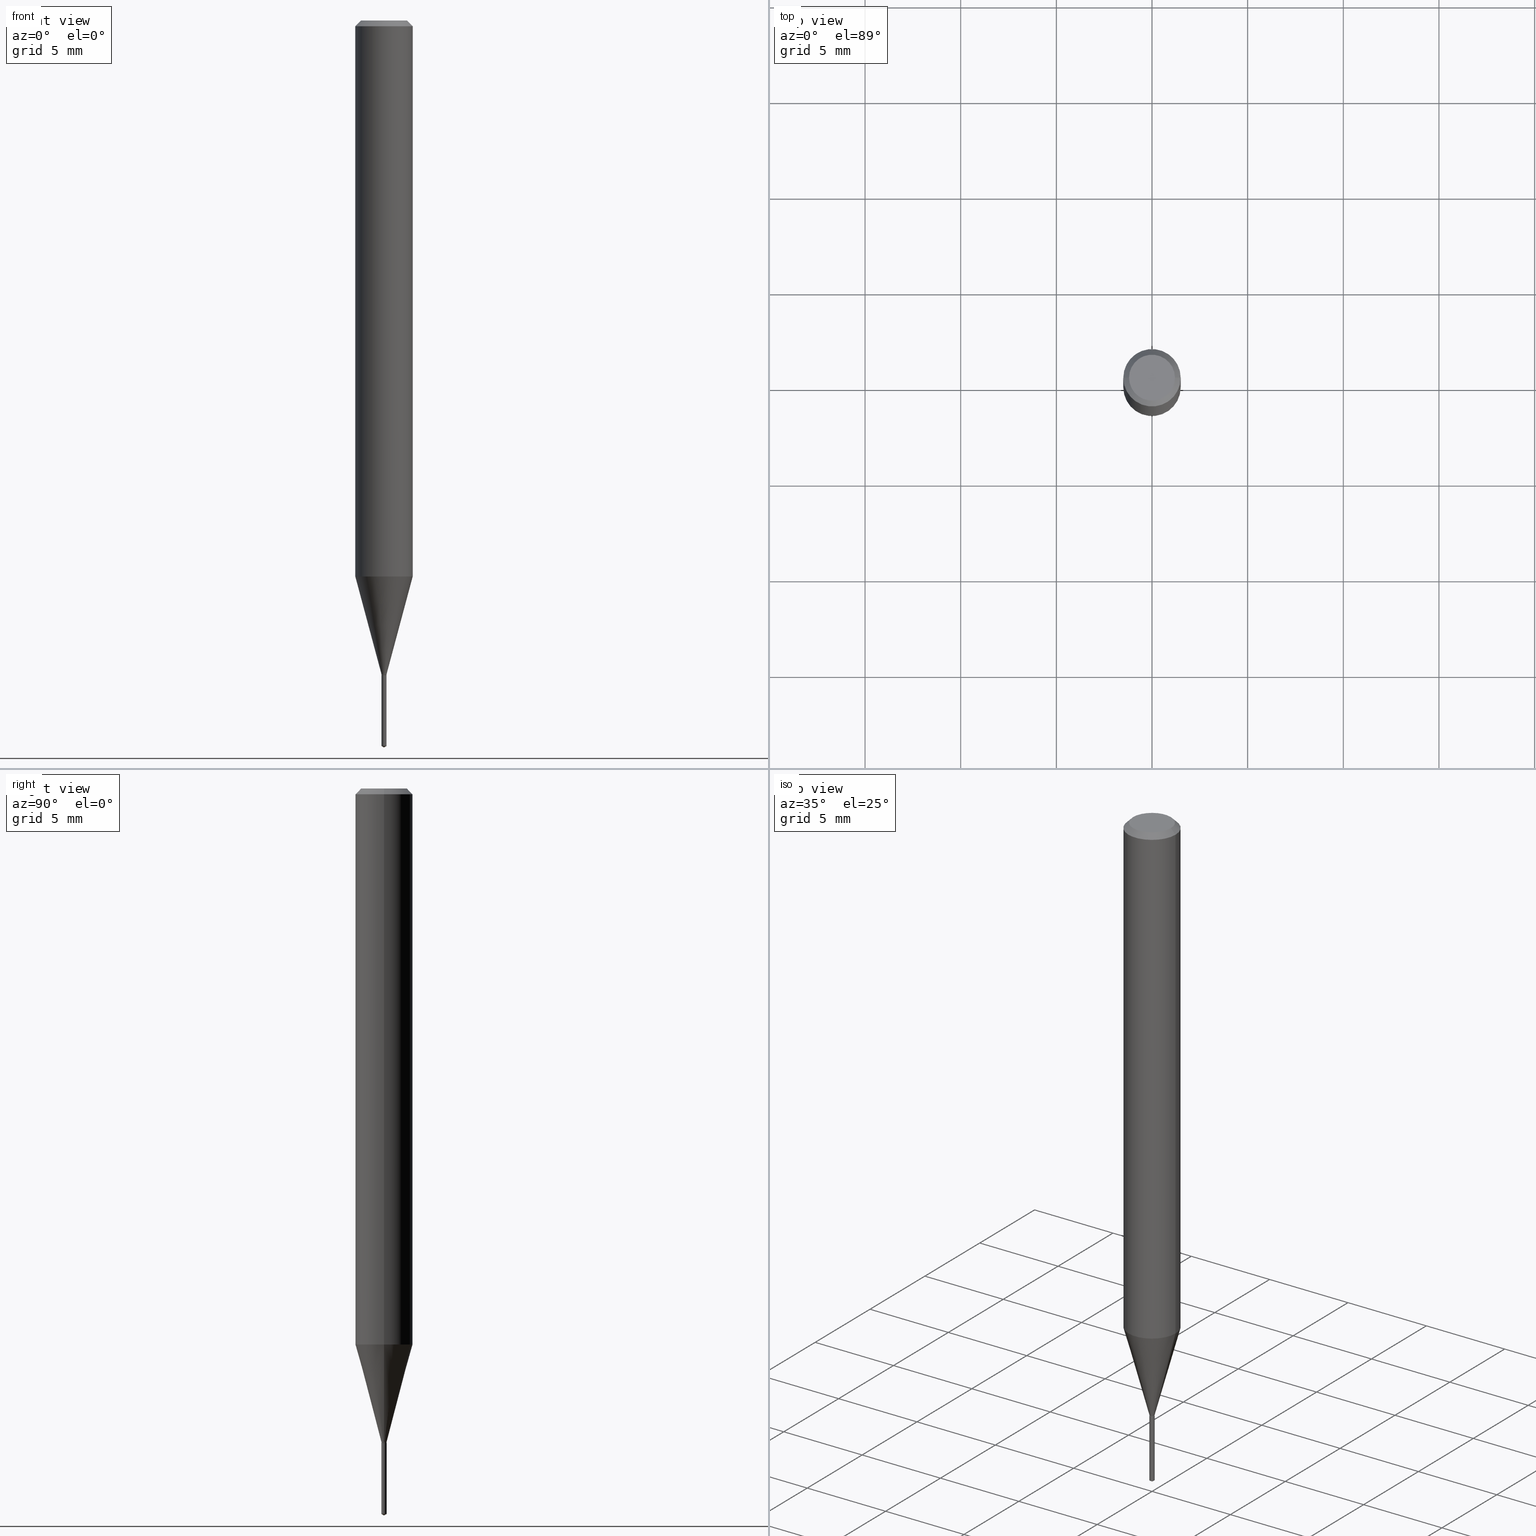
[diagram: canonical four-view strip — front | top / right | iso, engineering-drawing reading convention]
A machine part, canonical four-view strip (front | top / right | iso — engineering-drawing reading convention). The complete STEP part file that produces these views, byte-faithful:
ISO-10303-21;
HEADER;
FILE_DESCRIPTION (( 'STEP AP203' ),
    '1' );
FILE_NAME ('08068.STEP',
    '2024-04-24T10:28:14',
    ( '' ),
    ( '' ),
    'SwSTEP 2.0',
    'SolidWorks 2023',
    '' );
FILE_SCHEMA (( 'CONFIG_CONTROL_DESIGN' ));
ENDSEC;

DATA;
#1 = EDGE_CURVE ( 'NONE', #347, #334, #438, .T. ) ;
#2 = PERSON_AND_ORGANIZATION ( #227, #206 ) ;
#3 = ORIENTED_EDGE ( 'NONE', *, *, #230, .F. ) ;
#4 = APPROVAL_ROLE ( '' ) ;
#5 = EDGE_LOOP ( 'NONE', ( #462, #176, #136, #151 ) ) ;
#6 = VECTOR ( 'NONE', #90, 39.37007874015748143 ) ;
#7 = AXIS2_PLACEMENT_3D ( 'NONE', #470, #17, #395 ) ;
#8 =( NAMED_UNIT ( * ) PLANE_ANGLE_UNIT ( ) SI_UNIT ( $, .RADIAN. ) );
#9 = VERTEX_POINT ( 'NONE', #21 ) ;
#10 = ORIENTED_EDGE ( 'NONE', *, *, #32, .F. ) ;
#11 = DIRECTION ( 'NONE',  ( 2.445468806185136597E-29, -3.491481338843145583E-15, -1.000000000000000000 ) ) ;
#12 = LENGTH_MEASURE_WITH_UNIT ( LENGTH_MEASURE( 0.02539999999999999897 ), #355 );
#13 = VERTEX_POINT ( 'NONE', #474 ) ;
#14 = DIRECTION ( 'NONE',  ( -2.445442211314109806E-29, 3.491519424212141825E-15, 1.000000000000000000 ) ) ;
#15 =( NAMED_UNIT ( * ) SI_UNIT ( $, .STERADIAN. ) SOLID_ANGLE_UNIT ( ) );
#16 = VECTOR ( 'NONE', #31, 39.37007874015748854 ) ;
#17 = DIRECTION ( 'NONE',  ( -2.445468806185136597E-29, 3.491481338843145583E-15, 1.000000000000000000 ) ) ;
#18 = AXIS2_PLACEMENT_3D ( 'NONE', #311, #50, #321 ) ;
#19 = APPROVAL ( #263, 'UNSPECIFIED' ) ;
#20 = DIRECTION ( 'NONE',  ( 1.000000000000000000, -6.982962677686350330E-15, 0.000000000000000000 ) ) ;
#21 = CARTESIAN_POINT ( 'NONE',  ( 3.765876499532181332E-17, 0.005299999999994787180, -1.492915438719153887 ) ) ;
#22 = CYLINDRICAL_SURFACE ( 'NONE', #403, 0.005300000000000000891 ) ;
#23 = AXIS2_PLACEMENT_3D ( 'NONE', #120, #430, #391 ) ;
#24 = AXIS2_PLACEMENT_3D ( 'NONE', #59, #483, #170 ) ;
#25 = EDGE_CURVE ( 'NONE', #155, #328, #242, .T. ) ;
#26 = CARTESIAN_POINT ( 'NONE',  ( 3.650874241760179392E-29, -5.212491971044763500E-15, -1.492915438719153887 ) ) ;
#27 = CIRCLE ( 'NONE', #273, 0.005300000000000000891 ) ;
#28 = ORIENTED_EDGE ( 'NONE', *, *, #325, .F. ) ;
#29 = CONICAL_SURFACE ( 'NONE', #460, 65.52281426576722367, 1.029744258676646318 ) ;
#30 = EDGE_CURVE ( 'NONE', #153, #43, #200, .T. ) ;
#31 = DIRECTION ( 'NONE',  ( -5.985567269335913669E-15, -0.8571673007021062274, 0.5150380749100640365 ) ) ;
#32 = EDGE_CURVE ( 'NONE', #13, #312, #237, .T. ) ;
#33 = DIRECTION ( 'NONE',  ( 6.090539988449750037E-15, 0.8571673007021097801, 0.5150380749100581523 ) ) ;
#34 = PERSON_AND_ORGANIZATION_ROLE ( 'creator' ) ;
#35 = FACE_OUTER_BOUND ( 'NONE', #260, .T. ) ;
#36 = ORIENTED_EDGE ( 'NONE', *, *, #486, .T. ) ;
#37 = AXIS2_PLACEMENT_3D ( 'NONE', #281, #278, #127 ) ;
#38 = PERSON_AND_ORGANIZATION_ROLE ( 'creator' ) ;
#39 = ORIENTED_EDGE ( 'NONE', *, *, #32, .T. ) ;
#40 = ORIENTED_EDGE ( 'NONE', *, *, #451, .F. ) ;
#41 = PERSON_AND_ORGANIZATION ( #227, #206 ) ;
#42 = CARTESIAN_POINT ( 'NONE',  ( 0.004800000000000000447, -4.734797843605188939E-15, -1.346500000000000030 ) ) ;
#43 = VERTEX_POINT ( 'NONE', #94 ) ;
#44 = ORIENTED_EDGE ( 'NONE', *, *, #393, .T. ) ;
#45 = PERSON_AND_ORGANIZATION ( #227, #206 ) ;
#46 = CLOSED_SHELL ( 'NONE', ( #217, #233, #364, #425, #105 ) ) ;
#47 = AXIS2_PLACEMENT_3D ( 'NONE', #288, #137, #134 ) ;
#48 = CC_DESIGN_PERSON_AND_ORGANIZATION_ASSIGNMENT ( #41, #38, ( #440 ) ) ;
#49 = CARTESIAN_POINT ( 'NONE',  ( 0.05905000000000006771, -4.123439461173745257E-16, 2.879382386107503723E-30 ) ) ;
#50 = DIRECTION ( 'NONE',  ( 2.445468806185136597E-29, -3.491481338843145583E-15, -1.000000000000000000 ) ) ;
#51 = VERTEX_POINT ( 'NONE', #286 ) ;
#52 = DIRECTION ( 'NONE',  ( 2.445442211314109526E-29, -3.491519424212141825E-15, -1.000000000000000000 ) ) ;
#53 = LINE ( 'NONE', #129, #168 ) ;
#54 = CARTESIAN_POINT ( 'NONE',  ( 0.000000000000000000, 0.000000000000000000, 0.000000000000000000 ) ) ;
#55 = CARTESIAN_POINT ( 'NONE',  ( 8.265746106709734507E-48, -1.180129479067563789E-33, -3.380025165646692144E-19 ) ) ;
#56 = CARTESIAN_POINT ( 'NONE',  ( 0.05904999999999999832, -4.463468013801466955E-16, -0.01181000000000007044 ) ) ;
#57 = DIRECTION ( 'NONE',  ( 1.000000000000000000, -6.982962677686266711E-15, 4.876185090822587894E-29 ) ) ;
#58 = DIRECTION ( 'NONE',  ( 1.000000000000000000, 0.000000000000000000, 0.000000000000000000 ) ) ;
#59 = CARTESIAN_POINT ( 'NONE',  ( 3.292823747528286589E-29, -4.701279622752295282E-15, -1.346500000000000030 ) ) ;
#60 = AXIS2_PLACEMENT_3D ( 'NONE', #475, #249, #58 ) ;
#61 = CARTESIAN_POINT ( 'NONE',  ( 0.000000000000000000, 0.000000000000000000, 0.000000000000000000 ) ) ;
#62 = CARTESIAN_POINT ( 'NONE',  ( 3.765876499531823880E-17, 0.005299999999995298923, -1.346500000000000030 ) ) ;
#63 = ORIENTED_EDGE ( 'NONE', *, *, #191, .T. ) ;
#64 = ADVANCED_FACE ( 'NONE', ( #441 ), #240, .T. ) ;
#65 = CLOSED_SHELL ( 'NONE', ( #179, #253, #64, #354, #98, #114, #406, #478, #360, #117, #149, #437 ) ) ;
#66 = CONICAL_SURFACE ( 'NONE', #18, 0.05904999999999999832, 0.7853981633974452814 ) ;
#67 = DIRECTION ( 'NONE',  ( -2.445468806185136597E-29, 3.491481338843145583E-15, 1.000000000000000000 ) ) ;
#68 = APPROVAL_ROLE ( '' ) ;
#69 = ORIENTED_EDGE ( 'NONE', *, *, #416, .F. ) ;
#70 = EDGE_CURVE ( 'NONE', #194, #125, #82, .T. ) ;
#71 = VERTEX_POINT ( 'NONE', #359 ) ;
#72 = EDGE_LOOP ( 'NONE', ( #115, #350, #69, #385 ) ) ;
#73 = CARTESIAN_POINT ( 'NONE',  ( 0.04724000000000000421, -3.852183633974369345E-16, -3.380025165621689721E-19 ) ) ;
#74 = EDGE_LOOP ( 'NONE', ( #235, #296, #188, #374 ) ) ;
#75 = APPROVAL_PERSON_ORGANIZATION ( #45, #446, #190 ) ;
#76 = APPROVAL_DATE_TIME ( #335, #19 ) ;
#77 = EDGE_LOOP ( 'NONE', ( #415, #387, #229, #267 ) ) ;
#78 = FACE_OUTER_BOUND ( 'NONE', #72, .T. ) ;
#79 = ORIENTED_EDGE ( 'NONE', *, *, #209, .F. ) ;
#80 = ORIENTED_EDGE ( 'NONE', *, *, #99, .T. ) ;
#81 = DIRECTION ( 'NONE',  ( -0.7071067811865453523, 2.468850131082234184E-15, -0.7071067811865496822 ) ) ;
#82 = CIRCLE ( 'NONE', #481, 0.04724000000000000421 ) ;
#83 = VECTOR ( 'NONE', #96, 39.37007874015748143 ) ;
#84 = EDGE_LOOP ( 'NONE', ( #303, #389, #394 ) ) ;
#85 = CARTESIAN_POINT ( 'NONE',  ( 3.765876499532184414E-17, 0.005299999999995298923, -1.346500000000000030 ) ) ;
#86 = ADVANCED_BREP_SHAPE_REPRESENTATION ( '08068', ( #285, #280, #60 ), #97 ) ;
#87 = DIRECTION ( 'NONE',  ( 1.000000000000000000, -6.982962677686265133E-15, 4.876176775795935793E-29 ) ) ;
#88 = FACE_OUTER_BOUND ( 'NONE', #262, .T. ) ;
#89 = ORIENTED_EDGE ( 'NONE', *, *, #126, .T. ) ;
#90 = DIRECTION ( 'NONE',  ( -2.445468806185136877E-29, 3.491481338843145188E-15, 1.000000000000000000 ) ) ;
#91 = CC_DESIGN_PERSON_AND_ORGANIZATION_ASSIGNMENT ( #216, #34, ( #274 ) ) ;
#92 = CONICAL_SURFACE ( 'NONE', #345, 65.52281426576722367, 1.029744258676646318 ) ;
#93 = CARTESIAN_POINT ( 'NONE',  ( -0.005300000000000000891, 3.765876499528531618E-17, -2.607035597835100114E-31 ) ) ;
#94 = CARTESIAN_POINT ( 'NONE',  ( 0.05905000000000013710, -4.407653964652056153E-15, -1.144302269093172786 ) ) ;
#95 = CARTESIAN_POINT ( 'NONE',  ( 3.292823747528286589E-29, -4.701279622752295282E-15, -1.346500000000000030 ) ) ;
#96 = DIRECTION ( 'NONE',  ( -2.445442211314110086E-29, 3.491519424212141825E-15, 1.000000000000000000 ) ) ;
#97 =( GEOMETRIC_REPRESENTATION_CONTEXT ( 3 ) GLOBAL_UNCERTAINTY_ASSIGNED_CONTEXT ( ( #199 ) ) GLOBAL_UNIT_ASSIGNED_CONTEXT ( ( #396, #8, #15 ) ) REPRESENTATION_CONTEXT ( 'NONE', 'WORKASPACE' ) );
#98 = ADVANCED_FACE ( 'NONE', ( #431 ), #476, .T. ) ;
#99 = EDGE_CURVE ( 'NONE', #312, #308, #397, .T. ) ;
#100 = CARTESIAN_POINT ( 'NONE',  ( 0.005300000000000000891, -3.700970219173721302E-17, 2.584373691171846264E-31 ) ) ;
#101 = DIRECTION ( 'NONE',  ( -2.445442211314109806E-29, 3.491519424212141825E-15, 1.000000000000000000 ) ) ;
#102 = CIRCLE ( 'NONE', #299, 0.05904999999999999832 ) ;
#103 = AXIS2_PLACEMENT_3D ( 'NONE', #55, #124, #246 ) ;
#104 = ORIENTED_EDGE ( 'NONE', *, *, #70, .T. ) ;
#105 = ADVANCED_FACE ( 'NONE', ( #123 ), #162, .F. ) ;
#106 = DIRECTION ( 'NONE',  ( -2.445468806185136597E-29, 3.491481338843145583E-15, 1.000000000000000000 ) ) ;
#107 = ORIENTED_EDGE ( 'NONE', *, *, #466, .F. ) ;
#108 = DESIGN_CONTEXT ( 'detailed design', #340, 'design' ) ;
#109 = ORIENTED_EDGE ( 'NONE', *, *, #165, .F. ) ;
#110 = DIRECTION ( 'NONE',  ( 0.2588190451025213501, 1.565188264969621968E-15, 0.9659258262890682012 ) ) ;
#111 = CONICAL_SURFACE ( 'NONE', #172, 0.004800000000000000447, 0.7853981633975491983 ) ;
#112 = CIRCLE ( 'NONE', #7, 0.004800000000000000447 ) ;
#113 = APPROVAL_DATE_TIME ( #305, #446 ) ;
#114 = ADVANCED_FACE ( 'NONE', ( #365 ), #471, .T. ) ;
#115 = ORIENTED_EDGE ( 'NONE', *, *, #457, .T. ) ;
#116 = CARTESIAN_POINT ( 'NONE',  ( 0.005300000000000000891, -4.732702954801883924E-15, -1.344899999999999984 ) ) ;
#117 = ADVANCED_FACE ( 'NONE', ( #411 ), #484, .F. ) ;
#118 = DIRECTION ( 'NONE',  ( -2.445468806185136877E-29, 3.491481338843145188E-15, 1.000000000000000000 ) ) ;
#119 = CARTESIAN_POINT ( 'NONE',  ( 3.292823747528286589E-29, -4.701279622752295282E-15, -1.346500000000000030 ) ) ;
#120 = CARTESIAN_POINT ( 'NONE',  ( 3.288910997438389961E-29, -4.695693252610146470E-15, -1.344899999999999984 ) ) ;
#121 = CIRCLE ( 'NONE', #201, 0.05905000000000013710 ) ;
#122 = APPROVAL_PERSON_ORGANIZATION ( #2, #19, #68 ) ;
#123 = FACE_OUTER_BOUND ( 'NONE', #467, .T. ) ;
#124 = DIRECTION ( 'NONE',  ( -2.445468806185136597E-29, 3.491481338843145583E-15, 1.000000000000000000 ) ) ;
#125 = VERTEX_POINT ( 'NONE', #449 ) ;
#126 = EDGE_CURVE ( 'NONE', #155, #9, #215, .T. ) ;
#127 = DIRECTION ( 'NONE',  ( 1.000000000000000000, -6.982962677686350330E-15, 0.000000000000000000 ) ) ;
#128 = CARTESIAN_POINT ( 'NONE',  ( -3.700970219170070355E-17, -0.005300000000005212000, -1.492915438719153887 ) ) ;
#129 = CARTESIAN_POINT ( 'NONE',  ( -0.005300000000000000891, -4.658034487614861364E-15, -1.344899999999999984 ) ) ;
#130 = AXIS2_PLACEMENT_3D ( 'NONE', #224, #379, #187 ) ;
#131 = CONICAL_SURFACE ( 'NONE', #331, 0.005300000000000000891, 0.2617993877991500740 ) ;
#132 = DIRECTION ( 'NONE',  ( -2.445468806185136597E-29, 3.491481338843145583E-15, 1.000000000000000000 ) ) ;
#133 = DIRECTION ( 'NONE',  ( -2.445468806185136597E-29, 3.491481338843145583E-15, 1.000000000000000000 ) ) ;
#134 = DIRECTION ( 'NONE',  ( 1.000000000000000000, -6.982962677686250933E-15, 0.000000000000000000 ) ) ;
#135 = DIRECTION ( 'NONE',  ( -6.982962677686265133E-15, -1.000000000000000000, 0.000000000000000000 ) ) ;
#136 = ORIENTED_EDGE ( 'NONE', *, *, #165, .T. ) ;
#137 = DIRECTION ( 'NONE',  ( -2.445468806185136597E-29, 3.491481338843145583E-15, 1.000000000000000000 ) ) ;
#138 = PRODUCT_DEFINITION_SHAPE ( 'NONE', 'NONE',  #440 ) ;
#139 = CARTESIAN_POINT ( 'NONE',  ( 4.132873053354867254E-48, -5.900647395337818946E-34, -1.690012582823346072E-19 ) ) ;
#140 = PERSON_AND_ORGANIZATION_ROLE ( 'design_owner' ) ;
#141 = CIRCLE ( 'NONE', #428, 0.05904999999999999832 ) ;
#142 = EDGE_LOOP ( 'NONE', ( #315, #104 ) ) ;
#143 = AXIS2_PLACEMENT_3D ( 'NONE', #61, #208, #363 ) ;
#144 = SECURITY_CLASSIFICATION_LEVEL ( 'unclassified' ) ;
#145 = DIRECTION ( 'NONE',  ( 1.000000000000000000, -6.982962677686265922E-15, 4.876176775795935793E-29 ) ) ;
#146 = CALENDAR_DATE ( 2024, 24, 4 ) ;
#147 = EDGE_LOOP ( 'NONE', ( #421, #89, #381 ) ) ;
#148 = CARTESIAN_POINT ( 'NONE',  ( 3.658626092347039619E-29, -5.223662210563784453E-15, -1.496099999999999985 ) ) ;
#149 = ADVANCED_FACE ( 'NONE', ( #254 ), #289, .F. ) ;
#150 = DIRECTION ( 'NONE',  ( -2.445468806185136597E-29, 3.491481338843145583E-15, 1.000000000000000000 ) ) ;
#151 = ORIENTED_EDGE ( 'NONE', *, *, #30, .F. ) ;
#152 = VECTOR ( 'NONE', #320, 39.37007874015748143 ) ;
#153 = VERTEX_POINT ( 'NONE', #232 ) ;
#154 = DIRECTION ( 'NONE',  ( -2.445468806185136597E-29, 3.491481338843145583E-15, 1.000000000000000000 ) ) ;
#155 = VERTEX_POINT ( 'NONE', #148 ) ;
#156 = ORIENTED_EDGE ( 'NONE', *, *, #393, .F. ) ;
#157 = CARTESIAN_POINT ( 'NONE',  ( 0.005300000000000000891, -4.736543584274611232E-15, -1.346000000000000085 ) ) ;
#158 = COORDINATED_UNIVERSAL_TIME_OFFSET ( 5, 0, .BEHIND. ) ;
#159 = DIRECTION ( 'NONE',  ( -1.000000000000000000, 6.982962677686266711E-15, 0.000000000000000000 ) ) ;
#160 = CC_DESIGN_PERSON_AND_ORGANIZATION_ASSIGNMENT ( #338, #140, ( #349 ) ) ;
#161 = SECURITY_CLASSIFICATION ( '', '', #144 ) ;
#162 = PLANE ( 'NONE',  #362 ) ;
#163 = CARTESIAN_POINT ( 'NONE',  ( -0.004800000000000000447, -4.667173571435810285E-15, -1.346500000000000030 ) ) ;
#164 = CARTESIAN_POINT ( 'NONE',  ( 2.888098660104663766E-31, -4.123439461173779647E-17, -0.01181000000000007044 ) ) ;
#165 = EDGE_CURVE ( 'NONE', #308, #43, #261, .T. ) ;
#166 = CC_DESIGN_DATE_AND_TIME_ASSIGNMENT ( #234, #459, ( #161 ) ) ;
#167 = DIRECTION ( 'NONE',  ( -6.982962677686265133E-15, -1.000000000000000000, 0.000000000000000000 ) ) ;
#168 = VECTOR ( 'NONE', #198, 39.37007874015747433 ) ;
#169 = DIRECTION ( 'NONE',  ( -2.445442211314109806E-29, 3.491519424212141825E-15, 1.000000000000000000 ) ) ;
#170 = DIRECTION ( 'NONE',  ( 1.000000000000000000, -6.982962677686250933E-15, 0.000000000000000000 ) ) ;
#171 = APPROVAL ( #219, 'UNSPECIFIED' ) ;
#172 = AXIS2_PLACEMENT_3D ( 'NONE', #487, #106, #268 ) ;
#173 = DIRECTION ( 'NONE',  ( -6.982962677686265133E-15, -1.000000000000000000, 0.000000000000000000 ) ) ;
#174 = AXIS2_PLACEMENT_3D ( 'NONE', #314, #400, #239 ) ;
#175 = CARTESIAN_POINT ( 'NONE',  ( 8.265746106709734507E-48, -1.180129479067563789E-33, -3.380025165646692144E-19 ) ) ;
#176 = ORIENTED_EDGE ( 'NONE', *, *, #451, .T. ) ;
#177 = DIRECTION ( 'NONE',  ( -1.000000000000000000, 6.982962677686265922E-15, -4.876176775795935793E-29 ) ) ;
#178 = APPROVAL_DATE_TIME ( #221, #171 ) ;
#179 = ADVANCED_FACE ( 'NONE', ( #78 ), #111, .T. ) ;
#180 = CALENDAR_DATE ( 2024, 24, 4 ) ;
#181 = CARTESIAN_POINT ( 'NONE',  ( 3.292823747528286589E-29, -4.701279622752295282E-15, -1.346500000000000030 ) ) ;
#182 = AXIS2_PLACEMENT_3D ( 'NONE', #119, #448, #245 ) ;
#183 = EDGE_LOOP ( 'NONE', ( #156, #39, #80, #40 ) ) ;
#184 = VECTOR ( 'NONE', #279, 39.37007874015748143 ) ;
#185 = PERSON_AND_ORGANIZATION ( #227, #206 ) ;
#186 = ORIENTED_EDGE ( 'NONE', *, *, #1, .T. ) ;
#187 = DIRECTION ( 'NONE',  ( -6.982962677686265133E-15, -1.000000000000000000, 0.000000000000000000 ) ) ;
#188 = ORIENTED_EDGE ( 'NONE', *, *, #222, .F. ) ;
#189 = CIRCLE ( 'NONE', #23, 0.005300000000000000891 ) ;
#190 = APPROVAL_ROLE ( '' ) ;
#191 = EDGE_CURVE ( 'NONE', #328, #334, #420, .T. ) ;
#192 = ORIENTED_EDGE ( 'NONE', *, *, #265, .T. ) ;
#193 = LINE ( 'NONE', #163, #353 ) ;
#194 = VERTEX_POINT ( 'NONE', #73 ) ;
#195 = CARTESIAN_POINT ( 'NONE',  ( -9.261859051160046497E-28, 1.322377837254069045E-13, 37.87397874015748300 ) ) ;
#196 = PRODUCT_RELATED_PRODUCT_CATEGORY ( 'detail', '', ( #349 ) ) ;
#197 = DIRECTION ( 'NONE',  ( 6.982962677686265922E-15, 1.000000000000000000, -3.491519424212141825E-15 ) ) ;
#198 = DIRECTION ( 'NONE',  ( -0.2588190451025213501, 5.211531920934551042E-15, 0.9659258262890682012 ) ) ;
#199 = UNCERTAINTY_MEASURE_WITH_UNIT (LENGTH_MEASURE( 1.000000000000000082E-05 ), #396, 'distance_accuracy_value', 'NONE');
#200 = CIRCLE ( 'NONE', #330, 0.05905000000000013710 ) ;
#201 = AXIS2_PLACEMENT_3D ( 'NONE', #357, #318, #434 ) ;
#202 = CARTESIAN_POINT ( 'NONE',  ( 0.000000000000000000, 0.000000000000000000, 0.000000000000000000 ) ) ;
#203 = DIRECTION ( 'NONE',  ( -2.445468806185136597E-29, 3.491481338843145583E-15, 1.000000000000000000 ) ) ;
#204 = EDGE_CURVE ( 'NONE', #368, #312, #386, .T. ) ;
#205 = FACE_OUTER_BOUND ( 'NONE', #5, .T. ) ;
#206 = ORGANIZATION ( 'UNSPECIFIED', 'UNSPECIFIED', '' ) ;
#207 = CARTESIAN_POINT ( 'NONE',  ( 3.288910997438389961E-29, -4.695693252610146470E-15, -1.344899999999999984 ) ) ;
#208 = DIRECTION ( 'NONE',  ( -2.445468806185136597E-29, 3.491481338843145583E-15, 1.000000000000000000 ) ) ;
#209 = EDGE_CURVE ( 'NONE', #334, #347, #27, .T. ) ;
#210 = CARTESIAN_POINT ( 'NONE',  ( 3.292823747528286589E-29, -4.701279622752295282E-15, -1.346500000000000030 ) ) ;
#211 = COORDINATED_UNIVERSAL_TIME_OFFSET ( 5, 0, .BEHIND. ) ;
#212 = VECTOR ( 'NONE', #110, 39.37007874015747433 ) ;
#213 = LOCAL_TIME ( 6, 28, 14.00000000000000000, #211 ) ;
#214 = VERTEX_POINT ( 'NONE', #342 ) ;
#215 = LINE ( 'NONE', #369, #266 ) ;
#216 = PERSON_AND_ORGANIZATION ( #227, #206 ) ;
#217 = ADVANCED_FACE ( 'NONE', ( #35 ), #450, .T. ) ;
#218 = ORIENTED_EDGE ( 'NONE', *, *, #294, .F. ) ;
#219 = APPROVAL_STATUS ( 'not_yet_approved' ) ;
#220 = ORIENTED_EDGE ( 'NONE', *, *, #416, .T. ) ;
#221 = DATE_AND_TIME ( #301, #405 ) ;
#222 = EDGE_CURVE ( 'NONE', #71, #423, #102, .T. ) ;
#223 = EDGE_LOOP ( 'NONE', ( #28, #409, #269, #10 ) ) ;
#224 = CARTESIAN_POINT ( 'NONE',  ( 3.292823747528286589E-29, -4.701279622752295282E-15, -1.346500000000000030 ) ) ;
#225 = EDGE_LOOP ( 'NONE', ( #458, #304, #332, #418 ) ) ;
#226 = CC_DESIGN_SECURITY_CLASSIFICATION ( #161, ( #274 ) ) ;
#227 = PERSON ( 'UNSPECIFIED', 'UNSPECIFIED', 'UNSPECIFIED', ('UNSPECIFIED'), ('UNSPECIFIED'), ('UNSPECIFIED') ) ;
#228 = DATE_AND_TIME ( #146, #213 ) ;
#229 = ORIENTED_EDGE ( 'NONE', *, *, #222, .T. ) ;
#230 = EDGE_CURVE ( 'NONE', #153, #423, #298, .T. ) ;
#231 = SHAPE_DEFINITION_REPRESENTATION ( #138, #86 ) ;
#232 = CARTESIAN_POINT ( 'NONE',  ( -0.05905000000000013710, -3.575734533068340951E-15, -1.144302269093172786 ) ) ;
#233 = ADVANCED_FACE ( 'NONE', ( #313 ), #92, .T. ) ;
#234 = DATE_AND_TIME ( #309, #402 ) ;
#235 = ORIENTED_EDGE ( 'NONE', *, *, #294, .T. ) ;
#236 = FACE_OUTER_BOUND ( 'NONE', #77, .T. ) ;
#237 = CIRCLE ( 'NONE', #37, 0.005300000000000000891 ) ;
#238 = EDGE_CURVE ( 'NONE', #125, #423, #351, .T. ) ;
#239 = DIRECTION ( 'NONE',  ( 1.000000000000000000, -6.982962677686350330E-15, 0.000000000000000000 ) ) ;
#240 = CYLINDRICAL_SURFACE ( 'NONE', #401, 0.05905000000000006771 ) ;
#241 = LINE ( 'NONE', #49, #468 ) ;
#242 = LINE ( 'NONE', #284, #16 ) ;
#243 = CARTESIAN_POINT ( 'NONE',  ( 2.888098660104663766E-31, -4.123439461173779647E-17, -0.01181000000000007044 ) ) ;
#244 = AXIS2_PLACEMENT_3D ( 'NONE', #248, #291, #173 ) ;
#245 = DIRECTION ( 'NONE',  ( -6.982962677686265133E-15, -1.000000000000000000, 0.000000000000000000 ) ) ;
#246 = DIRECTION ( 'NONE',  ( 1.000000000000000000, -6.982962677686266711E-15, 4.876185090822587894E-29 ) ) ;
#247 = DIRECTION ( 'NONE',  ( -2.445468806185136597E-29, 3.491481338843145583E-15, 1.000000000000000000 ) ) ;
#248 = CARTESIAN_POINT ( 'NONE',  ( 3.650874241760179392E-29, -5.212491971044763500E-15, -1.492915438719153887 ) ) ;
#249 = DIRECTION ( 'NONE',  ( 0.000000000000000000, 0.000000000000000000, 1.000000000000000000 ) ) ;
#250 = CIRCLE ( 'NONE', #103, 0.04724000000000000421 ) ;
#251 = PERSON_AND_ORGANIZATION ( #227, #206 ) ;
#252 = ORIENTED_EDGE ( 'NONE', *, *, #466, .T. ) ;
#253 = ADVANCED_FACE ( 'NONE', ( #236 ), #366, .T. ) ;
#254 = FACE_OUTER_BOUND ( 'NONE', #264, .T. ) ;
#255 = AXIS2_PLACEMENT_3D ( 'NONE', #480, #433, #145 ) ;
#256 = CIRCLE ( 'NONE', #300, 0.005300000000000000891 ) ;
#257 = CARTESIAN_POINT ( 'NONE',  ( 2.888098660104663766E-31, -4.123439461173779647E-17, -0.01181000000000007044 ) ) ;
#258 = DIRECTION ( 'NONE',  ( -2.445442211314110086E-29, 3.491519424212141825E-15, 1.000000000000000000 ) ) ;
#259 = COORDINATED_UNIVERSAL_TIME_OFFSET ( 5, 0, .BEHIND. ) ;
#260 = EDGE_LOOP ( 'NONE', ( #380, #252, #79, #293 ) ) ;
#261 = LINE ( 'NONE', #116, #212 ) ;
#262 = EDGE_LOOP ( 'NONE', ( #370, #382, #218, #109 ) ) ;
#263 = APPROVAL_STATUS ( 'not_yet_approved' ) ;
#264 = EDGE_LOOP ( 'NONE', ( #422, #339 ) ) ;
#265 = EDGE_CURVE ( 'NONE', #43, #71, #241, .T. ) ;
#266 = VECTOR ( 'NONE', #33, 39.37007874015748143 ) ;
#267 = ORIENTED_EDGE ( 'NONE', *, *, #238, .F. ) ;
#268 = DIRECTION ( 'NONE',  ( 1.000000000000000000, -6.982962677686250933E-15, 0.000000000000000000 ) ) ;
#269 = ORIENTED_EDGE ( 'NONE', *, *, #204, .T. ) ;
#270 = ORIENTED_EDGE ( 'NONE', *, *, #1, .F. ) ;
#271 = CARTESIAN_POINT ( 'NONE',  ( 0.005300000000000000891, -4.732702954801883924E-15, -1.344899999999999984 ) ) ;
#272 = DIRECTION ( 'NONE',  ( 1.000000000000000000, -6.982962677686266711E-15, 0.000000000000000000 ) ) ;
#273 = AXIS2_PLACEMENT_3D ( 'NONE', #181, #101, #373 ) ;
#274 = PRODUCT_DEFINITION_FORMATION_WITH_SPECIFIED_SOURCE ( 'ANY', '', #349, .NOT_KNOWN. ) ;
#275 = DIRECTION ( 'NONE',  ( 1.000000000000000000, -6.982962677686266711E-15, 4.876176775795936353E-29 ) ) ;
#276 = DIRECTION ( 'NONE',  ( -0.7071067811866187380, 7.493145998870611329E-15, 0.7071067811864760744 ) ) ;
#277 = EDGE_CURVE ( 'NONE', #308, #51, #189, .T. ) ;
#278 = DIRECTION ( 'NONE',  ( -2.445468806185136597E-29, 3.491481338843145583E-15, 1.000000000000000000 ) ) ;
#279 = DIRECTION ( 'NONE',  ( 0.7071067811865453523, -7.319954787623248157E-15, -0.7071067811865496822 ) ) ;
#280 = MANIFOLD_SOLID_BREP ( 'Body-Move/Copy2[2]', #65 ) ;
#281 = CARTESIAN_POINT ( 'NONE',  ( 3.291601013125194348E-29, -4.699533882082873778E-15, -1.346000000000000085 ) ) ;
#282 = DIRECTION ( 'NONE',  ( -2.445442211314109806E-29, 3.491519424212141825E-15, 1.000000000000000000 ) ) ;
#283 = CONICAL_SURFACE ( 'NONE', #174, 0.005300000000000000891, 0.2617993877991500740 ) ;
#284 = CARTESIAN_POINT ( 'NONE',  ( 3.658626092347039619E-29, -5.223662210563784453E-15, -1.496099999999999985 ) ) ;
#285 = MANIFOLD_SOLID_BREP ( 'Body-Move/Copy2[1]', #46 ) ;
#286 = CARTESIAN_POINT ( 'NONE',  ( -0.005300000000000000891, -4.659954802351225412E-15, -1.344899999999999984 ) ) ;
#287 = EDGE_CURVE ( 'NONE', #423, #71, #141, .T. ) ;
#288 = CARTESIAN_POINT ( 'NONE',  ( 3.292823747528286589E-29, -4.701279622752295282E-15, -1.346500000000000030 ) ) ;
#289 = PLANE ( 'NONE',  #255 ) ;
#290 = CIRCLE ( 'NONE', #47, 0.004800000000000000447 ) ;
#291 = DIRECTION ( 'NONE',  ( -2.445442211314109806E-29, 3.491519424212141825E-15, 1.000000000000000000 ) ) ;
#292 = APPLICATION_CONTEXT ( 'configuration controlled 3d designs of mechanical parts and assemblies' ) ;
#293 = ORIENTED_EDGE ( 'NONE', *, *, #191, .F. ) ;
#294 = EDGE_CURVE ( 'NONE', #43, #153, #121, .T. ) ;
#295 = CYLINDRICAL_SURFACE ( 'NONE', #143, 0.05905000000000006771 ) ;
#296 = ORIENTED_EDGE ( 'NONE', *, *, #230, .T. ) ;
#297 = DIRECTION ( 'NONE',  ( 2.438088387897960049E-29, -3.491481338843145188E-15, -1.000000000000000000 ) ) ;
#298 = LINE ( 'NONE', #414, #6 ) ;
#299 = AXIS2_PLACEMENT_3D ( 'NONE', #257, #150, #306 ) ;
#300 = AXIS2_PLACEMENT_3D ( 'NONE', #207, #326, #477 ) ;
#301 = CALENDAR_DATE ( 2024, 24, 4 ) ;
#302 = CARTESIAN_POINT ( 'NONE',  ( -3.700970219170428424E-17, -0.005300000000004701992, -1.346500000000000030 ) ) ;
#303 = ORIENTED_EDGE ( 'NONE', *, *, #126, .F. ) ;
#304 = ORIENTED_EDGE ( 'NONE', *, *, #372, .F. ) ;
#305 = DATE_AND_TIME ( #343, #367 ) ;
#306 = DIRECTION ( 'NONE',  ( 1.000000000000000000, -6.982962677686266711E-15, 0.000000000000000000 ) ) ;
#307 = CONICAL_SURFACE ( 'NONE', #24, 0.004800000000000000447, 0.7853981633975491983 ) ;
#308 = VERTEX_POINT ( 'NONE', #271 ) ;
#309 = CALENDAR_DATE ( 2024, 24, 4 ) ;
#310 = ORIENTED_EDGE ( 'NONE', *, *, #30, .T. ) ;
#311 = CARTESIAN_POINT ( 'NONE',  ( 2.888098660104663766E-31, -4.123439461173779647E-17, -0.01181000000000007044 ) ) ;
#312 = VERTEX_POINT ( 'NONE', #157 ) ;
#313 = FACE_OUTER_BOUND ( 'NONE', #147, .T. ) ;
#314 = CARTESIAN_POINT ( 'NONE',  ( 3.288910997438389961E-29, -4.695693252610146470E-15, -1.344899999999999984 ) ) ;
#315 = ORIENTED_EDGE ( 'NONE', *, *, #372, .T. ) ;
#316 = CC_DESIGN_APPROVAL ( #171, ( #440 ) ) ;
#317 = CARTESIAN_POINT ( 'NONE',  ( 2.798355503914224078E-29, -3.995310018534680444E-15, -1.144302269093172786 ) ) ;
#318 = DIRECTION ( 'NONE',  ( -2.445468806185136597E-29, 3.491481338843145583E-15, 1.000000000000000000 ) ) ;
#319 = EDGE_CURVE ( 'NONE', #214, #368, #112, .T. ) ;
#320 = DIRECTION ( 'NONE',  ( -2.445468806185136877E-29, 3.491481338843145188E-15, 1.000000000000000000 ) ) ;
#321 = DIRECTION ( 'NONE',  ( -1.000000000000000000, 6.982962677686266711E-15, 0.000000000000000000 ) ) ;
#322 = APPLICATION_PROTOCOL_DEFINITION ( 'international standard', 'config_control_design', 1994, #292 ) ;
#323 = DIRECTION ( 'NONE',  ( 1.000000000000000000, -6.982962677686264344E-15, 0.000000000000000000 ) ) ;
#324 = FACE_OUTER_BOUND ( 'NONE', #223, .T. ) ;
#325 = EDGE_CURVE ( 'NONE', #214, #13, #193, .T. ) ;
#326 = DIRECTION ( 'NONE',  ( -2.445468806185136597E-29, 3.491481338843145583E-15, 1.000000000000000000 ) ) ;
#327 = CARTESIAN_POINT ( 'NONE',  ( 3.291601013125194348E-29, -4.699533882082873778E-15, -1.346000000000000085 ) ) ;
#328 = VERTEX_POINT ( 'NONE', #128 ) ;
#329 = AXIS2_PLACEMENT_3D ( 'NONE', #202, #356, #87 ) ;
#330 = AXIS2_PLACEMENT_3D ( 'NONE', #317, #132, #323 ) ;
#331 = AXIS2_PLACEMENT_3D ( 'NONE', #358, #154, #20 ) ;
#332 = ORIENTED_EDGE ( 'NONE', *, *, #238, .T. ) ;
#333 = EDGE_CURVE ( 'NONE', #194, #71, #436, .T. ) ;
#334 = VERTEX_POINT ( 'NONE', #469 ) ;
#335 = DATE_AND_TIME ( #180, #419 ) ;
#336 = VECTOR ( 'NONE', #456, 39.37007874015748854 ) ;
#337 = VECTOR ( 'NONE', #404, 39.37007874015748143 ) ;
#338 = PERSON_AND_ORGANIZATION ( #227, #206 ) ;
#339 = ORIENTED_EDGE ( 'NONE', *, *, #319, .F. ) ;
#340 = APPLICATION_CONTEXT ( 'configuration controlled 3d designs of mechanical parts and assemblies' ) ;
#341 = MECHANICAL_CONTEXT ( 'NONE', #292, 'mechanical' ) ;
#342 = CARTESIAN_POINT ( 'NONE',  ( -0.004800000000000000447, -4.664524344261699873E-15, -1.346500000000000030 ) ) ;
#343 = CALENDAR_DATE ( 2024, 24, 4 ) ;
#344 = CC_DESIGN_PERSON_AND_ORGANIZATION_ASSIGNMENT ( #185, #490, ( #274 ) ) ;
#345 = AXIS2_PLACEMENT_3D ( 'NONE', #424, #282, #432 ) ;
#346 = ORIENTED_EDGE ( 'NONE', *, *, #99, .F. ) ;
#347 = VERTEX_POINT ( 'NONE', #85 ) ;
#348 = FACE_OUTER_BOUND ( 'NONE', #84, .T. ) ;
#349 = PRODUCT ( '08068', '08068', '', ( #341 ) ) ;
#350 = ORIENTED_EDGE ( 'NONE', *, *, #325, .T. ) ;
#351 = LINE ( 'NONE', #465, #412 ) ;
#352 = LINE ( 'NONE', #93, #337 ) ;
#353 = VECTOR ( 'NONE', #276, 39.37007874015748854 ) ;
#354 = ADVANCED_FACE ( 'NONE', ( #88 ), #283, .T. ) ;
#355 =( LENGTH_UNIT ( ) NAMED_UNIT ( * ) SI_UNIT ( $, .METRE. ) );
#356 = DIRECTION ( 'NONE',  ( -2.445468806185136597E-29, 3.491481338843145583E-15, 1.000000000000000000 ) ) ;
#357 = CARTESIAN_POINT ( 'NONE',  ( 2.798355503914224078E-29, -3.995310018534680444E-15, -1.144302269093172786 ) ) ;
#358 = CARTESIAN_POINT ( 'NONE',  ( 3.288910997438389961E-29, -4.695693252610146470E-15, -1.344899999999999984 ) ) ;
#359 = CARTESIAN_POINT ( 'NONE',  ( 0.05904999999999999832, -4.535783407291118600E-16, -0.01181000000000007044 ) ) ;
#360 = ADVANCED_FACE ( 'NONE', ( #398 ), #66, .T. ) ;
#361 = FACE_OUTER_BOUND ( 'NONE', #488, .T. ) ;
#362 = AXIS2_PLACEMENT_3D ( 'NONE', #210, #52, #197 ) ;
#363 = DIRECTION ( 'NONE',  ( 1.000000000000000000, -6.982962677686266711E-15, 4.876176775795936353E-29 ) ) ;
#364 = ADVANCED_FACE ( 'NONE', ( #348 ), #29, .T. ) ;
#365 = FACE_OUTER_BOUND ( 'NONE', #183, .T. ) ;
#366 = CONICAL_SURFACE ( 'NONE', #390, 0.05904999999999999832, 0.7853981633974452814 ) ;
#367 = LOCAL_TIME ( 6, 28, 14.00000000000000000, #158 ) ;
#368 = VERTEX_POINT ( 'NONE', #473 ) ;
#369 = CARTESIAN_POINT ( 'NONE',  ( 3.658698340357466246E-29, -5.223559646665077197E-15, -1.496099999999999985 ) ) ;
#370 = ORIENTED_EDGE ( 'NONE', *, *, #277, .T. ) ;
#371 = COORDINATED_UNIVERSAL_TIME_OFFSET ( 5, 0, .BEHIND. ) ;
#372 = EDGE_CURVE ( 'NONE', #125, #194, #250, .T. ) ;
#373 = DIRECTION ( 'NONE',  ( -6.982962677686265133E-15, -1.000000000000000000, 0.000000000000000000 ) ) ;
#374 = ORIENTED_EDGE ( 'NONE', *, *, #265, .F. ) ;
#375 = APPLICATION_PROTOCOL_DEFINITION ( 'international standard', 'config_control_design', 1994, #340 ) ;
#376 = VECTOR ( 'NONE', #258, 39.37007874015748143 ) ;
#377 = ORIENTED_EDGE ( 'NONE', *, *, #287, .F. ) ;
#378 = CC_DESIGN_APPROVAL ( #19, ( #274 ) ) ;
#379 = DIRECTION ( 'NONE',  ( -2.445442211314109806E-29, 3.491519424212141825E-15, 1.000000000000000000 ) ) ;
#380 = ORIENTED_EDGE ( 'NONE', *, *, #410, .T. ) ;
#381 = ORIENTED_EDGE ( 'NONE', *, *, #410, .F. ) ;
#382 = ORIENTED_EDGE ( 'NONE', *, *, #383, .T. ) ;
#383 = EDGE_CURVE ( 'NONE', #51, #153, #53, .T. ) ;
#384 = CC_DESIGN_DATE_AND_TIME_ASSIGNMENT ( #228, #485, ( #440 ) ) ;
#385 = ORIENTED_EDGE ( 'NONE', *, *, #204, .F. ) ;
#386 = LINE ( 'NONE', #42, #336 ) ;
#387 = ORIENTED_EDGE ( 'NONE', *, *, #333, .T. ) ;
#388 = PERSON_AND_ORGANIZATION_ROLE ( 'classification_officer' ) ;
#389 = ORIENTED_EDGE ( 'NONE', *, *, #25, .T. ) ;
#390 = AXIS2_PLACEMENT_3D ( 'NONE', #164, #11, #159 ) ;
#391 = DIRECTION ( 'NONE',  ( 1.000000000000000000, -6.982962677686350330E-15, 0.000000000000000000 ) ) ;
#392 = CIRCLE ( 'NONE', #244, 0.005300000000000000891 ) ;
#393 = EDGE_CURVE ( 'NONE', #13, #51, #352, .T. ) ;
#394 = ORIENTED_EDGE ( 'NONE', *, *, #486, .F. ) ;
#395 = DIRECTION ( 'NONE',  ( 1.000000000000000000, -6.982962677686250933E-15, 0.000000000000000000 ) ) ;
#396 =( CONVERSION_BASED_UNIT ( 'INCH', #12 ) LENGTH_UNIT ( ) NAMED_UNIT ( #429 ) );
#397 = LINE ( 'NONE', #100, #152 ) ;
#398 = FACE_OUTER_BOUND ( 'NONE', #225, .T. ) ;
#399 = DIRECTION ( 'NONE',  ( -2.445468806185136597E-29, 3.491481338843145583E-15, 1.000000000000000000 ) ) ;
#400 = DIRECTION ( 'NONE',  ( -2.445468806185136597E-29, 3.491481338843145583E-15, 1.000000000000000000 ) ) ;
#401 = AXIS2_PLACEMENT_3D ( 'NONE', #54, #399, #275 ) ;
#402 = LOCAL_TIME ( 6, 28, 14.00000000000000000, #426 ) ;
#403 = AXIS2_PLACEMENT_3D ( 'NONE', #95, #169, #167 ) ;
#404 = DIRECTION ( 'NONE',  ( -2.445468806185136877E-29, 3.491481338843145188E-15, 1.000000000000000000 ) ) ;
#405 = LOCAL_TIME ( 6, 28, 14.00000000000000000, #259 ) ;
#406 = ADVANCED_FACE ( 'NONE', ( #205 ), #131, .T. ) ;
#407 = FACE_OUTER_BOUND ( 'NONE', #408, .T. ) ;
#408 = EDGE_LOOP ( 'NONE', ( #3, #310, #192, #377 ) ) ;
#409 = ORIENTED_EDGE ( 'NONE', *, *, #319, .T. ) ;
#410 = EDGE_CURVE ( 'NONE', #328, #9, #392, .T. ) ;
#411 = FACE_OUTER_BOUND ( 'NONE', #142, .T. ) ;
#412 = VECTOR ( 'NONE', #81, 39.37007874015748143 ) ;
#413 = AXIS2_PLACEMENT_3D ( 'NONE', #327, #133, #442 ) ;
#414 = CARTESIAN_POINT ( 'NONE',  ( -0.05905000000000006771, 4.195754854663396409E-16, -2.904631170795525045E-30 ) ) ;
#415 = ORIENTED_EDGE ( 'NONE', *, *, #70, .F. ) ;
#416 = EDGE_CURVE ( 'NONE', #312, #13, #454, .T. ) ;
#417 = ORIENTED_EDGE ( 'NONE', *, *, #209, .T. ) ;
#418 = ORIENTED_EDGE ( 'NONE', *, *, #287, .T. ) ;
#419 = LOCAL_TIME ( 6, 28, 14.00000000000000000, #371 ) ;
#420 = LINE ( 'NONE', #302, #376 ) ;
#421 = ORIENTED_EDGE ( 'NONE', *, *, #25, .F. ) ;
#422 = ORIENTED_EDGE ( 'NONE', *, *, #457, .F. ) ;
#423 = VERTEX_POINT ( 'NONE', #447 ) ;
#424 = CARTESIAN_POINT ( 'NONE',  ( -9.261859051160046497E-28, 1.322377837254069045E-13, 37.87397874015748300 ) ) ;
#425 = ADVANCED_FACE ( 'NONE', ( #361 ), #22, .T. ) ;
#426 = COORDINATED_UNIVERSAL_TIME_OFFSET ( 5, 0, .BEHIND. ) ;
#427 = EDGE_LOOP ( 'NONE', ( #220, #44, #464, #346 ) ) ;
#428 = AXIS2_PLACEMENT_3D ( 'NONE', #243, #203, #272 ) ;
#429 = DIMENSIONAL_EXPONENTS ( 1.000000000000000000, 0.000000000000000000, 0.000000000000000000, 0.000000000000000000, 0.000000000000000000, 0.000000000000000000, 0.000000000000000000 ) ;
#430 = DIRECTION ( 'NONE',  ( -2.445468806185136597E-29, 3.491481338843145583E-15, 1.000000000000000000 ) ) ;
#431 = FACE_OUTER_BOUND ( 'NONE', #427, .T. ) ;
#432 = DIRECTION ( 'NONE',  ( -6.982962677686265133E-15, -1.000000000000000000, 3.468864327941658112E-15 ) ) ;
#433 = DIRECTION ( 'NONE',  ( -2.438088387897960049E-29, 3.491481338843145188E-15, 1.000000000000000000 ) ) ;
#434 = DIRECTION ( 'NONE',  ( 1.000000000000000000, -6.982962677686264344E-15, 0.000000000000000000 ) ) ;
#435 = CARTESIAN_POINT ( 'NONE',  ( 0.000000000000000000, 0.000000000000000000, 0.000000000000000000 ) ) ;
#436 = LINE ( 'NONE', #56, #184 ) ;
#437 = ADVANCED_FACE ( 'NONE', ( #324 ), #307, .T. ) ;
#438 = CIRCLE ( 'NONE', #182, 0.005300000000000000891 ) ;
#439 = AXIS2_PLACEMENT_3D ( 'NONE', #26, #479, #135 ) ;
#440 = PRODUCT_DEFINITION ( 'UNKNOWN', '', #274, #108 ) ;
#441 = FACE_OUTER_BOUND ( 'NONE', #74, .T. ) ;
#442 = DIRECTION ( 'NONE',  ( 1.000000000000000000, -6.982962677686350330E-15, 0.000000000000000000 ) ) ;
#443 = LINE ( 'NONE', #62, #83 ) ;
#444 = AXIS2_PLACEMENT_3D ( 'NONE', #435, #67, #452 ) ;
#445 = CC_DESIGN_APPROVAL ( #446, ( #161 ) ) ;
#446 = APPROVAL ( #461, 'UNSPECIFIED' ) ;
#447 = CARTESIAN_POINT ( 'NONE',  ( -0.05904999999999999832, -1.598696721106868410E-15, -0.01181000000000007044 ) ) ;
#448 = DIRECTION ( 'NONE',  ( -2.445442211314109806E-29, 3.491519424212141825E-15, 1.000000000000000000 ) ) ;
#449 = CARTESIAN_POINT ( 'NONE',  ( -0.04724000000000000421, 3.504923541997677355E-16, -3.380025165670481712E-19 ) ) ;
#450 = CYLINDRICAL_SURFACE ( 'NONE', #130, 0.005300000000000000891 ) ;
#451 = EDGE_CURVE ( 'NONE', #51, #308, #256, .T. ) ;
#452 = DIRECTION ( 'NONE',  ( 1.000000000000000000, -6.982962677686265133E-15, 4.876176775795935793E-29 ) ) ;
#453 = AXIS2_PLACEMENT_3D ( 'NONE', #139, #297, #177 ) ;
#454 = CIRCLE ( 'NONE', #413, 0.005300000000000000891 ) ;
#455 = PERSON_AND_ORGANIZATION ( #227, #206 ) ;
#456 = DIRECTION ( 'NONE',  ( 0.7071067811866187380, -2.468850131083003717E-15, 0.7071067811864760744 ) ) ;
#457 = EDGE_CURVE ( 'NONE', #368, #214, #290, .T. ) ;
#458 = ORIENTED_EDGE ( 'NONE', *, *, #333, .F. ) ;
#459 = DATE_TIME_ROLE ( 'classification_date' ) ;
#460 = AXIS2_PLACEMENT_3D ( 'NONE', #195, #14, #463 ) ;
#461 = APPROVAL_STATUS ( 'not_yet_approved' ) ;
#462 = ORIENTED_EDGE ( 'NONE', *, *, #383, .F. ) ;
#463 = DIRECTION ( 'NONE',  ( -6.982962677686265133E-15, -1.000000000000000000, 3.468864327941658112E-15 ) ) ;
#464 = ORIENTED_EDGE ( 'NONE', *, *, #277, .F. ) ;
#465 = CARTESIAN_POINT ( 'NONE',  ( -0.05904999999999999832, 3.711095515056362547E-16, -0.01181000000000007044 ) ) ;
#466 = EDGE_CURVE ( 'NONE', #9, #347, #443, .T. ) ;
#467 = EDGE_LOOP ( 'NONE', ( #417, #186 ) ) ;
#468 = VECTOR ( 'NONE', #118, 39.37007874015748143 ) ;
#469 = CARTESIAN_POINT ( 'NONE',  ( -3.700970219170428424E-17, -0.005300000000004701992, -1.346500000000000030 ) ) ;
#470 = CARTESIAN_POINT ( 'NONE',  ( 3.292823747528286589E-29, -4.701279622752295282E-15, -1.346500000000000030 ) ) ;
#471 = CYLINDRICAL_SURFACE ( 'NONE', #444, 0.005300000000000000891 ) ;
#472 = CC_DESIGN_PERSON_AND_ORGANIZATION_ASSIGNMENT ( #455, #388, ( #161 ) ) ;
#473 = CARTESIAN_POINT ( 'NONE',  ( 0.004800000000000000447, -4.734797843605188939E-15, -1.346500000000000030 ) ) ;
#474 = CARTESIAN_POINT ( 'NONE',  ( -0.005300000000000000891, -4.659954802351225412E-15, -1.346000000000000085 ) ) ;
#475 = CARTESIAN_POINT ( 'NONE',  ( 0.000000000000000000, 0.000000000000000000, 0.000000000000000000 ) ) ;
#476 = CYLINDRICAL_SURFACE ( 'NONE', #329, 0.005300000000000000891 ) ;
#477 = DIRECTION ( 'NONE',  ( 1.000000000000000000, -6.982962677686350330E-15, 0.000000000000000000 ) ) ;
#478 = ADVANCED_FACE ( 'NONE', ( #407 ), #295, .T. ) ;
#479 = DIRECTION ( 'NONE',  ( -2.445442211314109806E-29, 3.491519424212141825E-15, 1.000000000000000000 ) ) ;
#480 = CARTESIAN_POINT ( 'NONE',  ( 3.292823747528286589E-29, -4.701279622752295282E-15, -1.346500000000000030 ) ) ;
#481 = AXIS2_PLACEMENT_3D ( 'NONE', #175, #247, #57 ) ;
#482 = CIRCLE ( 'NONE', #439, 0.005300000000000000891 ) ;
#483 = DIRECTION ( 'NONE',  ( -2.445468806185136597E-29, 3.491481338843145583E-15, 1.000000000000000000 ) ) ;
#484 = PLANE ( 'NONE',  #453 ) ;
#485 = DATE_TIME_ROLE ( 'creation_date' ) ;
#486 = EDGE_CURVE ( 'NONE', #9, #328, #482, .T. ) ;
#487 = CARTESIAN_POINT ( 'NONE',  ( 3.292823747528286589E-29, -4.701279622752295282E-15, -1.346500000000000030 ) ) ;
#488 = EDGE_LOOP ( 'NONE', ( #107, #36, #63, #270 ) ) ;
#489 = APPROVAL_PERSON_ORGANIZATION ( #251, #171, #4 ) ;
#490 = PERSON_AND_ORGANIZATION_ROLE ( 'design_supplier' ) ;
ENDSEC;
END-ISO-10303-21;
